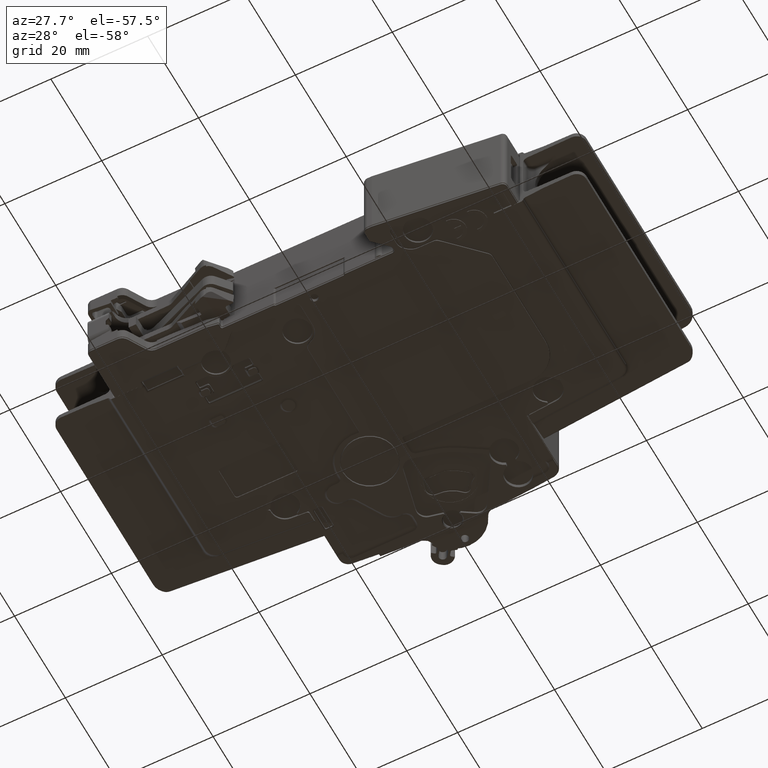
[diagram: clean part render]
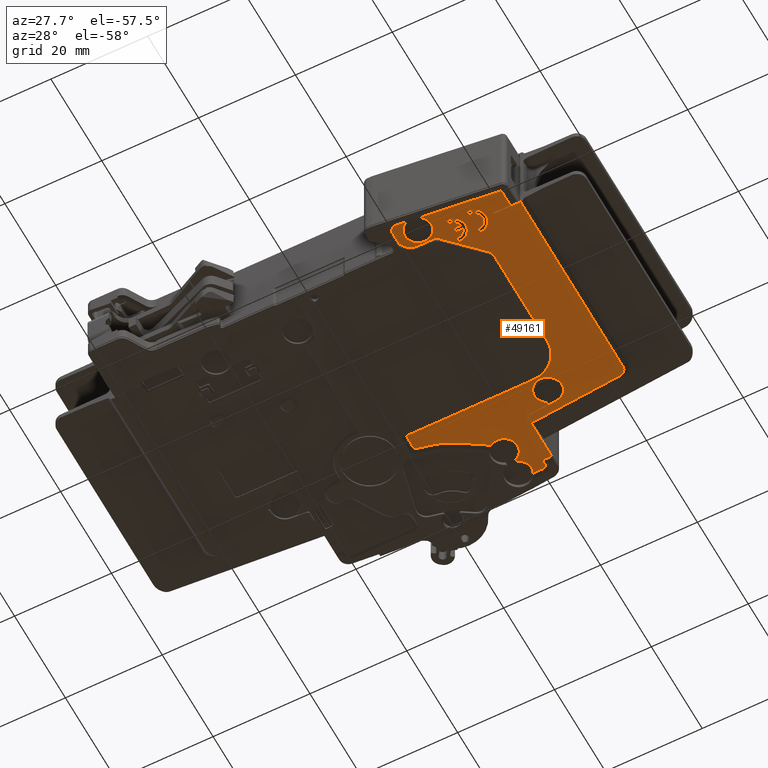
[diagram: same view with one face highlighted and labeled with its STEP entity id]
A machine part, auxiliary view. The second image highlights one B-rep face of the part: STEP entity #49161.
In plain terms, the highlighted planar face has unit normal (0, 0, -1).
Its self-contained STEP definition (entity closure, byte-faithful):
#1228=DIRECTION('',(0.E0,-1.E0,0.E0));
#1229=VECTOR('',#1228,2.15E-1);
#1230=CARTESIAN_POINT('',(3.75E1,-5.5185E1,-8.35E0));
#1231=LINE('',#1230,#1229);
#1232=DIRECTION('',(-1.E0,0.E0,0.E0));
#1233=VECTOR('',#1232,5.449684790342E0);
#1234=CARTESIAN_POINT('',(4.294968479034E1,-5.5185E1,-8.35E0));
#1235=LINE('',#1234,#1233);
#1236=DIRECTION('',(1.585320427637E-8,-1.E0,-2.087821174519E-14));
#1237=VECTOR('',#1236,4.032879597888E1);
#1238=CARTESIAN_POINT('',(4.294968415100E1,-1.485620402112E1,
-8.349999999999E0));
#1239=LINE('',#1238,#1237);
#1240=CARTESIAN_POINT('',(4.160032796449E1,-1.337431120210E1,-8.35E0));
#1241=CARTESIAN_POINT('',(4.164555193348E1,-1.337871798089E1,-8.35E0));
#1242=CARTESIAN_POINT('',(4.173544404628E1,-1.339161192450E1,-8.35E0));
#1243=CARTESIAN_POINT('',(4.186931000414E1,-1.342340272093E1,-8.35E0));
#1244=CARTESIAN_POINT('',(4.200006749807E1,-1.346753592454E1,-8.35E0));
#1245=CARTESIAN_POINT('',(4.212644106993E1,-1.352357114521E1,-8.35E0));
#1246=CARTESIAN_POINT('',(4.224693192566E1,-1.359095097465E1,-8.35E0));
#1247=CARTESIAN_POINT('',(4.236049311012E1,-1.366895014453E1,-8.35E0));
#1248=CARTESIAN_POINT('',(4.246633716313E1,-1.375697438128E1,-8.35E0));
#1249=CARTESIAN_POINT('',(4.256361296649E1,-1.385439342274E1,-8.35E0));
#1250=CARTESIAN_POINT('',(4.265150923949E1,-1.396030943009E1,-8.35E0));
#1251=CARTESIAN_POINT('',(4.272920261478E1,-1.407384998731E1,-8.35E0));
#1252=CARTESIAN_POINT('',(4.279606830037E1,-1.419395878786E1,-8.35E0));
#1253=CARTESIAN_POINT('',(4.285148721851E1,-1.431955000001E1,-8.35E0));
#1254=CARTESIAN_POINT('',(4.289510772930E1,-1.444968443652E1,-8.35E0));
#1255=CARTESIAN_POINT('',(4.292652669524E1,-1.458337468878E1,-8.35E0));
#1256=CARTESIAN_POINT('',(4.294545543059E1,-1.471949706554E1,-8.35E0));
#1257=CARTESIAN_POINT('',(4.294967593745E1,-1.481051499206E1,-8.35E0));
#1258=CARTESIAN_POINT('',(4.294968415100E1,-1.485620402112E1,-8.35E0));
#1260=CARTESIAN_POINT('',(2.26E1,-1.184572145420E1,-8.35E0));
#1261=CARTESIAN_POINT('',(2.500923800710E1,-1.204996584893E1,
-8.349999989701E0));
#1262=CARTESIAN_POINT('',(2.962875527405E1,-1.243182366404E1,
-8.350000007164E0));
#1263=CARTESIAN_POINT('',(3.591634043822E1,-1.293401448240E1,
-8.349999990373E0));
#1264=CARTESIAN_POINT('',(3.976734681658E1,-1.323334981301E1,
-8.350000017686E0));
#1265=CARTESIAN_POINT('',(4.160032796449E1,-1.337431120210E1,-8.35E0));
#1267=DIRECTION('',(0.E0,-1.E0,2.206262051490E-8));
#1268=VECTOR('',#1267,1.203615460863E0);
#1269=CARTESIAN_POINT('',(2.26E1,-1.184572149097E1,-8.350000026555E0));
#1270=LINE('',#1269,#1268);
#1271=CARTESIAN_POINT('',(2.31E1,-1.304933695184E1,-8.35E0));
#1272=DIRECTION('',(0.E0,0.E0,-1.E0));
#1273=DIRECTION('',(-6.975647374411E-2,-9.975640502598E-1,0.E0));
#1274=AXIS2_PLACEMENT_3D('',#1271,#1272,#1273);
#1276=DIRECTION('',(9.975640502598E-1,-6.975647374412E-2,0.E0));
#1277=VECTOR('',#1276,5.643944729052E0);
#1278=CARTESIAN_POINT('',(2.306512176313E1,-1.354811897697E1,-8.35E0));
#1279=LINE('',#1278,#1277);
#1280=CARTESIAN_POINT('',(2.85E1,-1.6735E1,-8.35E0));
#1281=DIRECTION('',(0.E0,0.E0,-1.E0));
#1282=DIRECTION('',(6.975647374412E-2,9.975640502598E-1,0.E0));
#1283=AXIS2_PLACEMENT_3D('',#1280,#1281,#1282);
#1285=DIRECTION('',(0.E0,-1.E0,1.183721730070E-14));
#1286=VECTOR('',#1285,4.501962228814E-1);
#1287=CARTESIAN_POINT('',(3.13E1,-1.6735E1,-8.35E0));
#1288=LINE('',#1287,#1286);
#1289=CARTESIAN_POINT('',(3.18E1,-1.718519622288E1,-8.35E0));
#1290=DIRECTION('',(0.E0,0.E0,-1.E0));
#1291=DIRECTION('',(-1.207977626023E-1,-9.926771381221E-1,0.E0));
#1292=AXIS2_PLACEMENT_3D('',#1289,#1290,#1291);
#1294=DIRECTION('',(-9.975640502598E-1,6.975647374413E-2,1.009657333956E-14));
#1295=VECTOR('',#1294,3.518732107735E-1);
#1296=CARTESIAN_POINT('',(3.173960111870E1,-1.768153479194E1,-8.35E0));
#1297=LINE('',#1296,#1295);
#1298=CARTESIAN_POINT('',(3.135370681651E1,-1.815577138268E1,-8.35E0));
#1299=DIRECTION('',(0.E0,0.E0,-1.E0));
#1300=DIRECTION('',(-9.088328666184E-1,4.171604254412E-1,0.E0));
#1301=AXIS2_PLACEMENT_3D('',#1298,#1299,#1300);
#1303=CARTESIAN_POINT('',(2.675873827067E1,-1.422924914940E1,-8.35E0));
#1304=DIRECTION('',(0.E0,0.E0,-1.E0));
#1305=DIRECTION('',(6.975647374412E-2,9.975640502598E-1,0.E0));
#1306=AXIS2_PLACEMENT_3D('',#1303,#1304,#1305);
#1308=DIRECTION('',(-9.975582352436E-1,6.983958259939E-2,0.E0));
#1309=VECTOR('',#1308,4.290161555167E0);
#1310=CARTESIAN_POINT('',(2.677966521279E1,-1.392997993433E1,-8.35E0));
#1311=LINE('',#1310,#1309);
#1312=DIRECTION('',(-9.999936306027E-1,3.569139129059E-3,-3.553429349325E-14));
#1313=VECTOR('',#1312,9.997985972271E-2);
#1314=CARTESIAN_POINT('',(2.249997922291E1,-1.363035684203E1,-8.35E0));
#1315=LINE('',#1314,#1313);
#1316=DIRECTION('',(-2.155216862029E-14,1.E0,-4.184549303161E-9));
#1317=VECTOR('',#1316,9.890550899243E0);
#1318=CARTESIAN_POINT('',(2.24E1,-1.363E1,-8.35E0));
#1319=LINE('',#1318,#1317);
#1320=CARTESIAN_POINT('',(2.24E1,-3.739449100757E0,-8.350000041387E0));
#1321=CARTESIAN_POINT('',(2.237847116600E1,-3.743938370308E0,
-8.349999984205E0));
#1322=CARTESIAN_POINT('',(2.233495122730E1,-3.751469876428E0,
-8.350000004542E0));
#1323=CARTESIAN_POINT('',(2.226781793283E1,-3.758387903097E0,
-8.350000007796E0));
#1324=CARTESIAN_POINT('',(2.222271340211E1,-3.759933662171E0,
-8.349999978782E0));
#1325=CARTESIAN_POINT('',(2.22E1,-3.759934207679E0,-8.349999999372E0));
#1327=DIRECTION('',(-1.E0,0.E0,-3.566300878734E-10));
#1328=VECTOR('',#1327,1.759934207679E0);
#1329=CARTESIAN_POINT('',(2.22E1,-3.759934207679E0,-8.349999999372E0));
#1330=LINE('',#1329,#1328);
#1331=DIRECTION('',(0.E0,1.E0,0.E0));
#1332=VECTOR('',#1331,9.599342076785E-1);
#1333=CARTESIAN_POINT('',(2.044006579232E1,-3.759934207679E0,-8.35E0));
#1334=LINE('',#1333,#1332);
#1335=CARTESIAN_POINT('',(1.97E1,-2.8E0,-8.35E0));
#1336=DIRECTION('',(0.E0,0.E0,1.E0));
#1337=DIRECTION('',(1.E0,0.E0,0.E0));
#1338=AXIS2_PLACEMENT_3D('',#1335,#1336,#1337);
#1340=DIRECTION('',(-1.E0,0.E0,0.E0));
#1341=VECTOR('',#1340,2.024949497651E0);
#1342=CARTESIAN_POINT('',(1.97E1,-2.059934207679E0,-8.35E0));
#1343=LINE('',#1342,#1341);
#1344=CARTESIAN_POINT('',(1.52E1,-3.2E0,-8.35E0));
#1345=DIRECTION('',(0.E0,0.E0,-1.E0));
#1346=DIRECTION('',(9.082754137061E-1,4.183727678244E-1,0.E0));
#1347=AXIS2_PLACEMENT_3D('',#1344,#1345,#1346);
#1349=DIRECTION('',(0.E0,-1.E0,0.E0));
#1350=VECTOR('',#1349,4.033806544678E-1);
#1351=CARTESIAN_POINT('',(1.62E1,-5.734881654042E0,-8.35E0));
#1352=LINE('',#1351,#1350);
#1353=DIRECTION('',(-8.480476537988E-1,-5.299199721527E-1,0.E0));
#1354=VECTOR('',#1353,5.771635530098E0);
#1355=CARTESIAN_POINT('',(1.367005012096E1,-1.098511573791E1,-8.35E0));
#1356=LINE('',#1355,#1354);
#1357=CARTESIAN_POINT('',(0.E0,0.E0,-8.35E0));
#1358=DIRECTION('',(0.E0,0.E0,-1.E0));
#1359=DIRECTION('',(5.299192642332E-1,-8.480480961564E-1,0.E0));
#1360=AXIS2_PLACEMENT_3D('',#1357,#1358,#1359);
#1362=DIRECTION('',(-9.743700647852E-1,-2.249510543439E-1,0.E0));
#1363=VECTOR('',#1362,2.749651092337E0);
#1364=CARTESIAN_POINT('',(3.725174659882E0,-1.613550416677E1,-8.35E0));
#1365=LINE('',#1364,#1363);
#1366=CARTESIAN_POINT('',(1.1E0,-1.698795400069E1,-8.35E0));
#1367=DIRECTION('',(0.E0,0.E0,1.E0));
#1368=DIRECTION('',(-2.249510543439E-1,9.743700647852E-1,0.E0));
#1369=AXIS2_PLACEMENT_3D('',#1366,#1367,#1368);
#1371=DIRECTION('',(6.581773651376E-13,-1.E0,0.E0));
#1372=VECTOR('',#1371,2.962045999309E0);
#1373=CARTESIAN_POINT('',(8.599342076785E-1,-1.698795400069E1,-8.35E0));
#1374=LINE('',#1373,#1372);
#1375=DIRECTION('',(-1.E0,0.E0,0.E0));
#1376=VECTOR('',#1375,2.614006579232E1);
#1377=CARTESIAN_POINT('',(2.7E1,-1.995E1,-8.35E0));
#1378=LINE('',#1377,#1376);
#1379=CARTESIAN_POINT('',(2.7E1,-2.62E1,-8.35E0));
#1380=DIRECTION('',(0.E0,0.E0,1.E0));
#1381=DIRECTION('',(1.E0,0.E0,0.E0));
#1382=AXIS2_PLACEMENT_3D('',#1379,#1380,#1381);
#1384=DIRECTION('',(0.E0,1.E0,0.E0));
#1385=VECTOR('',#1384,2.089644660941E1);
#1386=CARTESIAN_POINT('',(3.325E1,-4.709644660941E1,-8.35E0));
#1387=LINE('',#1386,#1385);
#1388=CARTESIAN_POINT('',(3.15E1,-4.709644660941E1,-8.35E0));
#1389=DIRECTION('',(0.E0,0.E0,1.E0));
#1390=DIRECTION('',(7.071067811866E-1,-7.071067811865E-1,0.E0));
#1391=AXIS2_PLACEMENT_3D('',#1388,#1389,#1390);
#1393=DIRECTION('',(7.071067811865E-1,7.071067811865E-1,0.E0));
#1394=VECTOR('',#1393,9.442388155425E0);
#1395=CARTESIAN_POINT('',(2.606066017178E1,-5.501066017178E1,-8.35E0));
#1396=LINE('',#1395,#1394);
#1397=CARTESIAN_POINT('',(2.5E1,-5.395E1,-8.35E0));
#1398=DIRECTION('',(0.E0,0.E0,1.E0));
#1399=DIRECTION('',(0.E0,-1.E0,0.E0));
#1400=AXIS2_PLACEMENT_3D('',#1397,#1398,#1399);
#1402=DIRECTION('',(1.E0,0.E0,0.E0));
#1403=VECTOR('',#1402,3.157359312881E0);
#1404=CARTESIAN_POINT('',(2.184264068712E1,-5.545E1,-8.35E0));
#1405=LINE('',#1404,#1403);
#1406=CARTESIAN_POINT('',(2.184264068712E1,-5.82E1,-8.35E0));
#1407=DIRECTION('',(0.E0,0.E0,-1.E0));
#1408=DIRECTION('',(-7.071067811865E-1,7.071067811865E-1,0.E0));
#1409=AXIS2_PLACEMENT_3D('',#1406,#1407,#1408);
#1411=DIRECTION('',(7.071067811866E-1,7.071067811865E-1,0.E0));
#1412=VECTOR('',#1411,4.745166004061E-1);
#1413=CARTESIAN_POINT('',(1.956256313292E1,-5.659099025767E1,-8.35E0));
#1414=LINE('',#1413,#1412);
#1415=CARTESIAN_POINT('',(2.08E1,-5.782842712475E1,-8.35E0));
#1416=DIRECTION('',(0.E0,0.E0,-1.E0));
#1417=DIRECTION('',(-1.E0,0.E0,0.E0));
#1418=AXIS2_PLACEMENT_3D('',#1415,#1416,#1417);
#1420=DIRECTION('',(0.E0,1.E0,0.E0));
#1421=VECTOR('',#1420,2.220502312150E0);
#1422=CARTESIAN_POINT('',(1.905E1,-6.004892943690E1,-8.35E0));
#1423=LINE('',#1422,#1421);
#1424=CARTESIAN_POINT('',(2.03E1,-6.004892943690E1,-8.35E0));
#1425=DIRECTION('',(0.E0,0.E0,-1.E0));
#1426=DIRECTION('',(1.132032137679E-1,-9.935718556766E-1,0.E0));
#1427=AXIS2_PLACEMENT_3D('',#1424,#1425,#1426);
#1429=DIRECTION('',(-9.935718556766E-1,-1.132032137679E-1,0.E0));
#1430=VECTOR('',#1429,2.061128359385E0);
#1431=CARTESIAN_POINT('',(2.248938314603E1,-6.105756790222E1,-8.35E0));
#1432=LINE('',#1431,#1430);
#1433=CARTESIAN_POINT('',(2.35E1,-5.85E1,-8.35E0));
#1434=DIRECTION('',(0.E0,0.E0,-1.E0));
#1435=DIRECTION('',(-3.674970378067E-1,-9.300246917170E-1,0.E0));
#1436=AXIS2_PLACEMENT_3D('',#1433,#1434,#1435);
#1438=CARTESIAN_POINT('',(2.35E1,-5.85E1,-8.35E0));
#1439=DIRECTION('',(0.E0,0.E0,-1.E0));
#1440=DIRECTION('',(-1.E0,0.E0,0.E0));
#1441=AXIS2_PLACEMENT_3D('',#1438,#1439,#1440);
#1443=CARTESIAN_POINT('',(2.35E1,-5.85E1,-8.35E0));
#1444=DIRECTION('',(0.E0,0.E0,-1.E0));
#1445=DIRECTION('',(1.E0,0.E0,0.E0));
#1446=AXIS2_PLACEMENT_3D('',#1443,#1444,#1445);
#1448=DIRECTION('',(9.935718556766E-1,1.132032137679E-1,0.E0));
#1449=VECTOR('',#1448,1.576962784150E1);
#1450=CARTESIAN_POINT('',(2.506004240564E1,-6.076467827574E1,-8.35E0));
#1451=LINE('',#1450,#1449);
#1452=CARTESIAN_POINT('',(4.07E1,-5.873111276024E1,-8.35E0));
#1453=DIRECTION('',(0.E0,0.E0,1.E0));
#1454=DIRECTION('',(1.132032137679E-1,-9.935718556766E-1,0.E0));
#1455=AXIS2_PLACEMENT_3D('',#1452,#1453,#1454);
#1457=DIRECTION('',(0.E0,1.E0,0.E0));
#1458=VECTOR('',#1457,3.331112760241E0);
#1459=CARTESIAN_POINT('',(4.095E1,-5.873111276024E1,-8.35E0));
#1460=LINE('',#1459,#1458);
#1461=DIRECTION('',(-1.E0,0.E0,0.E0));
#1462=VECTOR('',#1461,3.45E0);
#1463=CARTESIAN_POINT('',(4.095E1,-5.54E1,-8.35E0));
#1464=LINE('',#1463,#1462);
#1465=CARTESIAN_POINT('',(3.35E1,-5.537770889260E1,-8.35E0));
#1466=DIRECTION('',(0.E0,0.E0,-1.E0));
#1467=DIRECTION('',(-1.E-1,9.949874371066E-1,0.E0));
#1468=AXIS2_PLACEMENT_3D('',#1465,#1466,#1467);
#1470=DIRECTION('',(0.E0,1.E0,0.E0));
#1471=VECTOR('',#1470,7.554177851977E-1);
#1472=CARTESIAN_POINT('',(3.325E1,-5.786517748537E1,-8.35E0));
#1473=LINE('',#1472,#1471);
#1474=CARTESIAN_POINT('',(3.35E1,-5.537770889260E1,-8.35E0));
#1475=DIRECTION('',(0.E0,0.E0,-1.E0));
#1476=DIRECTION('',(-1.428571428571E-1,9.897433186108E-1,0.E0));
#1477=AXIS2_PLACEMENT_3D('',#1474,#1475,#1476);
#1479=DIRECTION('',(0.E0,1.E0,0.E0));
#1480=VECTOR('',#1479,7.554177851977E-1);
#1481=CARTESIAN_POINT('',(3.325E1,-5.364565808503E1,-8.35E0));
#1482=LINE('',#1481,#1480);
#1483=CARTESIAN_POINT('',(2.925E1,-5.537770889260E1,-8.35E0));
#1484=DIRECTION('',(0.E0,0.E0,-1.E0));
#1485=DIRECTION('',(-1.E-1,9.949874371066E-1,0.E0));
#1486=AXIS2_PLACEMENT_3D('',#1483,#1484,#1485);
#1488=DIRECTION('',(0.E0,1.E0,0.E0));
#1489=VECTOR('',#1488,7.554177851977E-1);
#1490=CARTESIAN_POINT('',(2.9E1,-5.786517748537E1,-8.35E0));
#1491=LINE('',#1490,#1489);
#1492=CARTESIAN_POINT('',(2.925E1,-5.537770889260E1,-8.35E0));
#1493=DIRECTION('',(0.E0,0.E0,-1.E0));
#1494=DIRECTION('',(9.764301481775E-1,-2.158336529136E-1,0.E0));
#1495=AXIS2_PLACEMENT_3D('',#1492,#1493,#1494);
#1497=DIRECTION('',(-1.E0,0.E0,0.E0));
#1498=VECTOR('',#1497,1.458752759311E0);
#1499=CARTESIAN_POINT('',(3.095875275931E1,-5.575541778520E1,-8.35E0));
#1500=LINE('',#1499,#1498);
#1501=DIRECTION('',(0.E0,1.E0,0.E0));
#1502=VECTOR('',#1501,7.554177851977E-1);
#1503=CARTESIAN_POINT('',(2.95E1,-5.575541778520E1,-8.35E0));
#1504=LINE('',#1503,#1502);
#1505=DIRECTION('',(1.E0,0.E0,0.E0));
#1506=VECTOR('',#1505,1.458752759311E0);
#1507=CARTESIAN_POINT('',(2.95E1,-5.5E1,-8.35E0));
#1508=LINE('',#1507,#1506);
#1509=CARTESIAN_POINT('',(2.925E1,-5.537770889260E1,-8.35E0));
#1510=DIRECTION('',(0.E0,0.E0,-1.E0));
#1511=DIRECTION('',(-1.428571428571E-1,9.897433186108E-1,0.E0));
#1512=AXIS2_PLACEMENT_3D('',#1509,#1510,#1511);
#1514=DIRECTION('',(0.E0,1.E0,0.E0));
#1515=VECTOR('',#1514,7.554177851977E-1);
#1516=CARTESIAN_POINT('',(2.9E1,-5.364565808503E1,-8.35E0));
#1517=LINE('',#1516,#1515);
#25422=CARTESIAN_POINT('',(1.52E1,-8.7E0,-8.35E0));
#25423=DIRECTION('',(0.E0,0.E0,1.E0));
#25424=DIRECTION('',(-5.563437796092E-1,-8.309522241923E-1,0.E0));
#25425=AXIS2_PLACEMENT_3D('',#25422,#25423,#25424);
#25497=CARTESIAN_POINT('',(2.24E1,-3.739449100757E0,-8.350000041387E0));
#30508=CARTESIAN_POINT('',(2.84E1,-1.68E1,-8.35E0));
#30509=DIRECTION('',(0.E0,0.E0,1.E0));
#30510=DIRECTION('',(-5.381185997801E-1,8.428691313429E-1,0.E0));
#30511=AXIS2_PLACEMENT_3D('',#30508,#30509,#30510);
#39290=CARTESIAN_POINT('',(2.075E1,-5.85E1,-8.35E0));
#39291=CARTESIAN_POINT('',(2.625E1,-5.85E1,-8.35E0));
#39292=VERTEX_POINT('',#39290);
#39293=VERTEX_POINT('',#39291);
#39294=CARTESIAN_POINT('',(1.62E1,-5.734881654042E0,-8.35E0));
#39295=CARTESIAN_POINT('',(1.62E1,-6.138262308510E0,-8.35E0));
#39296=VERTEX_POINT('',#39294);
#39297=VERTEX_POINT('',#39295);
#39881=CARTESIAN_POINT('',(3.325E1,-5.289024029983E1,-8.35E0));
#39882=VERTEX_POINT('',#39881);
#39883=CARTESIAN_POINT('',(3.325E1,-5.786517748537E1,-8.35E0));
#39884=VERTEX_POINT('',#39883);
#39885=CARTESIAN_POINT('',(3.325E1,-5.710975970017E1,-8.35E0));
#39886=VERTEX_POINT('',#39885);
#39887=CARTESIAN_POINT('',(3.325E1,-5.364565808503E1,-8.35E0));
#39888=VERTEX_POINT('',#39887);
#39889=CARTESIAN_POINT('',(2.9E1,-5.289024029983E1,-8.35E0));
#39890=VERTEX_POINT('',#39889);
#39891=CARTESIAN_POINT('',(2.9E1,-5.786517748537E1,-8.35E0));
#39892=VERTEX_POINT('',#39891);
#39893=CARTESIAN_POINT('',(2.9E1,-5.710975970017E1,-8.35E0));
#39894=VERTEX_POINT('',#39893);
#39895=CARTESIAN_POINT('',(3.095875275931E1,-5.575541778520E1,-8.35E0));
#39896=VERTEX_POINT('',#39895);
#39897=CARTESIAN_POINT('',(2.95E1,-5.575541778520E1,-8.35E0));
#39898=VERTEX_POINT('',#39897);
#39899=CARTESIAN_POINT('',(2.95E1,-5.5E1,-8.35E0));
#39900=VERTEX_POINT('',#39899);
#39901=CARTESIAN_POINT('',(3.095875275931E1,-5.5E1,-8.35E0));
#39902=VERTEX_POINT('',#39901);
#39903=CARTESIAN_POINT('',(2.9E1,-5.364565808503E1,-8.35E0));
#39904=VERTEX_POINT('',#39903);
#40492=CARTESIAN_POINT('',(2.249997922291E1,-1.363035684203E1,-8.35E0));
#40493=CARTESIAN_POINT('',(2.24E1,-1.363E1,-8.35E0));
#40494=VERTEX_POINT('',#40492);
#40495=VERTEX_POINT('',#40493);
#40567=CARTESIAN_POINT('',(3.089929038320E1,-1.794719116996E1,-8.35E0));
#40568=CARTESIAN_POINT('',(3.138858505338E1,-1.765698935755E1,-8.35E0));
#40569=VERTEX_POINT('',#40567);
#40570=VERTEX_POINT('',#40568);
#40575=CARTESIAN_POINT('',(2.677966521279E1,-1.392997993433E1,-8.35E0));
#40576=CARTESIAN_POINT('',(2.692017385060E1,-1.448210988881E1,-8.35E0));
#40577=VERTEX_POINT('',#40575);
#40578=VERTEX_POINT('',#40576);
#40604=CARTESIAN_POINT('',(1.97E1,-2.059934207679E0,-8.35E0));
#40605=CARTESIAN_POINT('',(1.767505050235E1,-2.059934207679E0,-8.35E0));
#40606=VERTEX_POINT('',#40604);
#40607=VERTEX_POINT('',#40605);
#40612=CARTESIAN_POINT('',(2.044006579232E1,-2.8E0,-8.35E0));
#40613=VERTEX_POINT('',#40612);
#40618=CARTESIAN_POINT('',(2.044006579232E1,-3.759934207679E0,-8.35E0));
#40619=VERTEX_POINT('',#40618);
#40620=CARTESIAN_POINT('',(1.045996946905E0,-1.675404107907E1,-8.35E0));
#40621=CARTESIAN_POINT('',(8.599342076785E-1,-1.698795400069E1,-8.35E0));
#40622=VERTEX_POINT('',#40620);
#40623=VERTEX_POINT('',#40621);
#40628=CARTESIAN_POINT('',(3.725174659882E0,-1.613550416677E1,-8.35E0));
#40629=VERTEX_POINT('',#40628);
#40632=CARTESIAN_POINT('',(8.775428151083E0,-1.404362067730E1,-8.35E0));
#40633=VERTEX_POINT('',#40632);
#40638=CARTESIAN_POINT('',(1.367005012096E1,-1.098511573791E1,-8.35E0));
#40639=VERTEX_POINT('',#40638);
#40660=VERTEX_POINT('',#25497);
#40664=CARTESIAN_POINT('',(2.506004240564E1,-6.076467827574E1,-8.35E0));
#40665=CARTESIAN_POINT('',(4.072830080344E1,-5.897950572416E1,-8.35E0));
#40666=VERTEX_POINT('',#40664);
#40667=VERTEX_POINT('',#40665);
#40686=CARTESIAN_POINT('',(2.248938314603E1,-6.105756790222E1,-8.35E0));
#40687=VERTEX_POINT('',#40686);
#40700=CARTESIAN_POINT('',(4.095E1,-5.54E1,-8.35E0));
#40702=VERTEX_POINT('',#40700);
#40727=CARTESIAN_POINT('',(4.095E1,-5.873111276024E1,-8.35E0));
#40728=VERTEX_POINT('',#40727);
#40731=CARTESIAN_POINT('',(3.75E1,-5.54E1,-8.35E0));
#40732=VERTEX_POINT('',#40731);
#40741=CARTESIAN_POINT('',(2.7E1,-1.995E1,-8.35E0));
#40742=CARTESIAN_POINT('',(8.599342076805E-1,-1.995E1,-8.35E0));
#40743=VERTEX_POINT('',#40741);
#40744=VERTEX_POINT('',#40742);
#40749=CARTESIAN_POINT('',(3.325E1,-4.709644660941E1,-8.35E0));
#40750=CARTESIAN_POINT('',(3.325E1,-2.62E1,-8.35E0));
#40751=VERTEX_POINT('',#40749);
#40752=VERTEX_POINT('',#40750);
#40757=CARTESIAN_POINT('',(2.606066017178E1,-5.501066017178E1,-8.35E0));
#40758=CARTESIAN_POINT('',(3.273743686708E1,-4.833388347648E1,-8.35E0));
#40759=VERTEX_POINT('',#40757);
#40760=VERTEX_POINT('',#40758);
#40763=CARTESIAN_POINT('',(2.5E1,-5.545E1,-8.35E0));
#40764=VERTEX_POINT('',#40763);
#40767=CARTESIAN_POINT('',(2.184264068712E1,-5.545E1,-8.35E0));
#40768=VERTEX_POINT('',#40767);
#40771=CARTESIAN_POINT('',(1.905E1,-6.004892943690E1,-8.35E0));
#40772=CARTESIAN_POINT('',(1.905E1,-5.782842712475E1,-8.35E0));
#40773=VERTEX_POINT('',#40771);
#40774=VERTEX_POINT('',#40772);
#40775=CARTESIAN_POINT('',(2.044150401721E1,-6.129089425649E1,-8.35E0));
#40776=VERTEX_POINT('',#40775);
#40791=CARTESIAN_POINT('',(1.989809703886E1,-5.625545635174E1,-8.35E0));
#40792=VERTEX_POINT('',#40791);
#40795=CARTESIAN_POINT('',(1.956256313292E1,-5.659099025767E1,-8.35E0));
#40796=VERTEX_POINT('',#40795);
#40907=VERTEX_POINT('',#1325);
#47451=CARTESIAN_POINT('',(2.869531812648E1,-1.394182065927E1,-8.35E0));
#47452=CARTESIAN_POINT('',(3.13E1,-1.6735E1,-8.35E0));
#47453=VERTEX_POINT('',#47451);
#47454=VERTEX_POINT('',#47452);
#47621=CARTESIAN_POINT('',(2.306512176313E1,-1.354811897697E1,-8.35E0));
#47622=CARTESIAN_POINT('',(2.26E1,-1.304933695184E1,-8.35E0));
#47623=VERTEX_POINT('',#47621);
#47624=VERTEX_POINT('',#47622);
#47627=CARTESIAN_POINT('',(3.13E1,-1.718519622288E1,-8.35E0));
#47628=VERTEX_POINT('',#47627);
#47631=CARTESIAN_POINT('',(2.26E1,-1.184572149097E1,-8.350000026555E0));
#47632=VERTEX_POINT('',#47631);
#47746=CARTESIAN_POINT('',(4.294968479034E1,-5.5185E1,-8.35E0));
#47748=VERTEX_POINT('',#47746);
#47752=CARTESIAN_POINT('',(4.294968415100E1,-1.485620402112E1,
-8.349999999999E0));
#47753=VERTEX_POINT('',#47752);
#47754=VERTEX_POINT('',#1240);
#47849=CARTESIAN_POINT('',(3.75E1,-5.5185E1,-8.35E0));
#47851=VERTEX_POINT('',#47849);
#47855=CARTESIAN_POINT('',(3.173960111870E1,-1.768153479194E1,-8.35E0));
#47857=VERTEX_POINT('',#47855);
#49028=CARTESIAN_POINT('',(0.E0,0.E0,-8.35E0));
#49029=DIRECTION('',(0.E0,0.E0,-1.E0));
#49030=DIRECTION('',(-1.E0,0.E0,0.E0));
#49031=AXIS2_PLACEMENT_3D('',#49028,#49029,#49030);
#49032=PLANE('',#49031);
#49033=ORIENTED_EDGE('',*,*,#49012,.F.);
#49034=ORIENTED_EDGE('',*,*,#48994,.F.);
#49036=ORIENTED_EDGE('',*,*,#49035,.F.);
#49038=ORIENTED_EDGE('',*,*,#49037,.F.);
#49040=ORIENTED_EDGE('',*,*,#49039,.F.);
#49042=ORIENTED_EDGE('',*,*,#49041,.T.);
#49044=ORIENTED_EDGE('',*,*,#49043,.F.);
#49046=ORIENTED_EDGE('',*,*,#49045,.T.);
#49048=ORIENTED_EDGE('',*,*,#49047,.T.);
#49050=ORIENTED_EDGE('',*,*,#49049,.T.);
#49052=ORIENTED_EDGE('',*,*,#49051,.F.);
#49054=ORIENTED_EDGE('',*,*,#49053,.T.);
#49056=ORIENTED_EDGE('',*,*,#49055,.F.);
#49058=ORIENTED_EDGE('',*,*,#49057,.F.);
#49060=ORIENTED_EDGE('',*,*,#49059,.F.);
#49062=ORIENTED_EDGE('',*,*,#49061,.T.);
#49064=ORIENTED_EDGE('',*,*,#49063,.T.);
#49066=ORIENTED_EDGE('',*,*,#49065,.T.);
#49068=ORIENTED_EDGE('',*,*,#49067,.T.);
#49070=ORIENTED_EDGE('',*,*,#49069,.T.);
#49072=ORIENTED_EDGE('',*,*,#49071,.T.);
#49074=ORIENTED_EDGE('',*,*,#49073,.T.);
#49076=ORIENTED_EDGE('',*,*,#49075,.T.);
#49078=ORIENTED_EDGE('',*,*,#49077,.T.);
#49080=ORIENTED_EDGE('',*,*,#49079,.T.);
#49082=ORIENTED_EDGE('',*,*,#49081,.F.);
#49084=ORIENTED_EDGE('',*,*,#49083,.T.);
#49086=ORIENTED_EDGE('',*,*,#49085,.T.);
#49088=ORIENTED_EDGE('',*,*,#49087,.T.);
#49090=ORIENTED_EDGE('',*,*,#49089,.T.);
#49092=ORIENTED_EDGE('',*,*,#49091,.T.);
#49094=ORIENTED_EDGE('',*,*,#49093,.F.);
#49096=ORIENTED_EDGE('',*,*,#49095,.F.);
#49098=ORIENTED_EDGE('',*,*,#49097,.F.);
#49100=ORIENTED_EDGE('',*,*,#49099,.F.);
#49102=ORIENTED_EDGE('',*,*,#49101,.F.);
#49104=ORIENTED_EDGE('',*,*,#49103,.F.);
#49106=ORIENTED_EDGE('',*,*,#49105,.F.);
#49108=ORIENTED_EDGE('',*,*,#49107,.F.);
#49110=ORIENTED_EDGE('',*,*,#49109,.F.);
#49112=ORIENTED_EDGE('',*,*,#49111,.F.);
#49114=ORIENTED_EDGE('',*,*,#49113,.F.);
#49116=ORIENTED_EDGE('',*,*,#49115,.F.);
#49118=ORIENTED_EDGE('',*,*,#49117,.F.);
#49120=ORIENTED_EDGE('',*,*,#49119,.T.);
#49122=ORIENTED_EDGE('',*,*,#49121,.T.);
#49124=ORIENTED_EDGE('',*,*,#49123,.T.);
#49126=ORIENTED_EDGE('',*,*,#49125,.T.);
#49128=ORIENTED_EDGE('',*,*,#49127,.T.);
#49129=ORIENTED_EDGE('',*,*,#48095,.T.);
#49130=ORIENTED_EDGE('',*,*,#48119,.T.);
#49131=EDGE_LOOP('',(#49033,#49034,#49036,#49038,#49040,#49042,#49044,#49046,
#49048,#49050,#49052,#49054,#49056,#49058,#49060,#49062,#49064,#49066,#49068,
#49070,#49072,#49074,#49076,#49078,#49080,#49082,#49084,#49086,#49088,#49090,
#49092,#49094,#49096,#49098,#49100,#49102,#49104,#49106,#49108,#49110,#49112,
#49114,#49116,#49118,#49120,#49122,#49124,#49126,#49128,#49129,#49130));
#49132=FACE_OUTER_BOUND('',#49131,.F.);
#49134=ORIENTED_EDGE('',*,*,#49133,.T.);
#49136=ORIENTED_EDGE('',*,*,#49135,.T.);
#49138=ORIENTED_EDGE('',*,*,#49137,.F.);
#49140=ORIENTED_EDGE('',*,*,#49139,.T.);
#49141=EDGE_LOOP('',(#49134,#49136,#49138,#49140));
#49142=FACE_BOUND('',#49141,.F.);
#49144=ORIENTED_EDGE('',*,*,#49143,.T.);
#49146=ORIENTED_EDGE('',*,*,#49145,.T.);
#49148=ORIENTED_EDGE('',*,*,#49147,.F.);
#49150=ORIENTED_EDGE('',*,*,#49149,.T.);
#49152=ORIENTED_EDGE('',*,*,#49151,.T.);
#49154=ORIENTED_EDGE('',*,*,#49153,.T.);
#49156=ORIENTED_EDGE('',*,*,#49155,.F.);
#49158=ORIENTED_EDGE('',*,*,#49157,.T.);
#49159=EDGE_LOOP('',(#49144,#49146,#49148,#49150,#49152,#49154,#49156,#49158));
#49160=FACE_BOUND('',#49159,.F.);
#1259=B_SPLINE_CURVE_WITH_KNOTS('',3,(#1240,#1241,#1242,#1243,#1244,#1245,#1246,
#1247,#1248,#1249,#1250,#1251,#1252,#1253,#1254,#1255,#1256,#1257,#1258),
.UNSPECIFIED.,.F.,.F.,(4,1,1,1,1,1,1,1,1,1,1,1,1,1,1,1,4),(0.E0,6.25E-2,1.25E-1,
1.875E-1,2.5E-1,3.125E-1,3.75E-1,4.375E-1,5.E-1,5.625E-1,6.25E-1,6.875E-1,
7.5E-1,8.125E-1,8.75E-1,9.375E-1,1.E0),.UNSPECIFIED.);
#1266=B_SPLINE_CURVE_WITH_KNOTS('',3,(#1260,#1261,#1262,#1263,#1264,#1265),
.UNSPECIFIED.,.F.,.F.,(4,1,1,4),(0.E0,3.333333333333E-1,6.666666666667E-1,1.E0),
.UNSPECIFIED.);
#1275=CIRCLE('',#1274,5.E-1);
#1284=CIRCLE('',#1283,2.8E0);
#1293=CIRCLE('',#1292,5.E-1);
#1302=CIRCLE('',#1301,5.E-1);
#1307=CIRCLE('',#1306,3.E-1);
#1326=B_SPLINE_CURVE_WITH_KNOTS('',3,(#1320,#1321,#1322,#1323,#1324,#1325),
.UNSPECIFIED.,.F.,.F.,(4,1,1,4),(0.E0,3.333333333333E-1,6.666666666667E-1,1.E0),
.UNSPECIFIED.);
#1339=CIRCLE('',#1338,7.400657923215E-1);
#1348=CIRCLE('',#1347,2.725E0);
#1361=CIRCLE('',#1360,1.655993420768E1);
#1370=CIRCLE('',#1369,2.400657923215E-1);
#1383=CIRCLE('',#1382,6.25E0);
#1392=CIRCLE('',#1391,1.75E0);
#1401=CIRCLE('',#1400,1.5E0);
#1410=CIRCLE('',#1409,2.75E0);
#1419=CIRCLE('',#1418,1.75E0);
#1428=CIRCLE('',#1427,1.25E0);
#1437=CIRCLE('',#1436,2.75E0);
#1442=CIRCLE('',#1441,2.75E0);
#1447=CIRCLE('',#1446,2.75E0);
#1456=CIRCLE('',#1455,2.5E-1);
#1469=CIRCLE('',#1468,2.5E0);
#1478=CIRCLE('',#1477,1.75E0);
#1487=CIRCLE('',#1486,2.5E0);
#1496=CIRCLE('',#1495,1.75E0);
#1513=CIRCLE('',#1512,1.75E0);
#25426=CIRCLE('',#25425,2.75E0);
#30512=CIRCLE('',#30511,2.75E0);
#48095=EDGE_CURVE('',#40728,#40702,#1460,.T.);
#48119=EDGE_CURVE('',#40702,#40732,#1464,.T.);
#48994=EDGE_CURVE('',#47748,#47851,#1235,.T.);
#49012=EDGE_CURVE('',#47851,#40732,#1231,.T.);
#49035=EDGE_CURVE('',#47753,#47748,#1239,.T.);
#49037=EDGE_CURVE('',#47754,#47753,#1259,.T.);
#49039=EDGE_CURVE('',#47632,#47754,#1266,.T.);
#49041=EDGE_CURVE('',#47632,#47624,#1270,.T.);
#49043=EDGE_CURVE('',#47623,#47624,#1275,.T.);
#49045=EDGE_CURVE('',#47623,#47453,#1279,.T.);
#49047=EDGE_CURVE('',#47453,#47454,#1284,.T.);
#49049=EDGE_CURVE('',#47454,#47628,#1288,.T.);
#49051=EDGE_CURVE('',#47857,#47628,#1293,.T.);
#49053=EDGE_CURVE('',#47857,#40570,#1297,.T.);
#49055=EDGE_CURVE('',#40569,#40570,#1302,.T.);
#49057=EDGE_CURVE('',#40578,#40569,#30512,.T.);
#49059=EDGE_CURVE('',#40577,#40578,#1307,.T.);
#49061=EDGE_CURVE('',#40577,#40494,#1311,.T.);
#49063=EDGE_CURVE('',#40494,#40495,#1315,.T.);
#49065=EDGE_CURVE('',#40495,#40660,#1319,.T.);
#49067=EDGE_CURVE('',#40660,#40907,#1326,.T.);
#49069=EDGE_CURVE('',#40907,#40619,#1330,.T.);
#49071=EDGE_CURVE('',#40619,#40613,#1334,.T.);
#49073=EDGE_CURVE('',#40613,#40606,#1339,.T.);
#49075=EDGE_CURVE('',#40606,#40607,#1343,.T.);
#49077=EDGE_CURVE('',#40607,#39296,#1348,.T.);
#49079=EDGE_CURVE('',#39296,#39297,#1352,.T.);
#49081=EDGE_CURVE('',#40639,#39297,#25426,.T.);
#49083=EDGE_CURVE('',#40639,#40633,#1356,.T.);
#49085=EDGE_CURVE('',#40633,#40629,#1361,.T.);
#49087=EDGE_CURVE('',#40629,#40622,#1365,.T.);
#49089=EDGE_CURVE('',#40622,#40623,#1370,.T.);
#49091=EDGE_CURVE('',#40623,#40744,#1374,.T.);
#49093=EDGE_CURVE('',#40743,#40744,#1378,.T.);
#49095=EDGE_CURVE('',#40752,#40743,#1383,.T.);
#49097=EDGE_CURVE('',#40751,#40752,#1387,.T.);
#49099=EDGE_CURVE('',#40760,#40751,#1392,.T.);
#49101=EDGE_CURVE('',#40759,#40760,#1396,.T.);
#49103=EDGE_CURVE('',#40764,#40759,#1401,.T.);
#49105=EDGE_CURVE('',#40768,#40764,#1405,.T.);
#49107=EDGE_CURVE('',#40792,#40768,#1410,.T.);
#49109=EDGE_CURVE('',#40796,#40792,#1414,.T.);
#49111=EDGE_CURVE('',#40774,#40796,#1419,.T.);
#49113=EDGE_CURVE('',#40773,#40774,#1423,.T.);
#49115=EDGE_CURVE('',#40776,#40773,#1428,.T.);
#49117=EDGE_CURVE('',#40687,#40776,#1432,.T.);
#49119=EDGE_CURVE('',#40687,#39292,#1437,.T.);
#49121=EDGE_CURVE('',#39292,#39293,#1442,.T.);
#49123=EDGE_CURVE('',#39293,#40666,#1447,.T.);
#49125=EDGE_CURVE('',#40666,#40667,#1451,.T.);
#49127=EDGE_CURVE('',#40667,#40728,#1456,.T.);
#49133=EDGE_CURVE('',#39882,#39884,#1469,.T.);
#49135=EDGE_CURVE('',#39884,#39886,#1473,.T.);
#49137=EDGE_CURVE('',#39888,#39886,#1478,.T.);
#49139=EDGE_CURVE('',#39888,#39882,#1482,.T.);
#49143=EDGE_CURVE('',#39890,#39892,#1487,.T.);
#49145=EDGE_CURVE('',#39892,#39894,#1491,.T.);
#49147=EDGE_CURVE('',#39896,#39894,#1496,.T.);
#49149=EDGE_CURVE('',#39896,#39898,#1500,.T.);
#49151=EDGE_CURVE('',#39898,#39900,#1504,.T.);
#49153=EDGE_CURVE('',#39900,#39902,#1508,.T.);
#49155=EDGE_CURVE('',#39904,#39902,#1513,.T.);
#49157=EDGE_CURVE('',#39904,#39890,#1517,.T.);
#49161=ADVANCED_FACE('',(#49132,#49142,#49160),#49032,.T.);